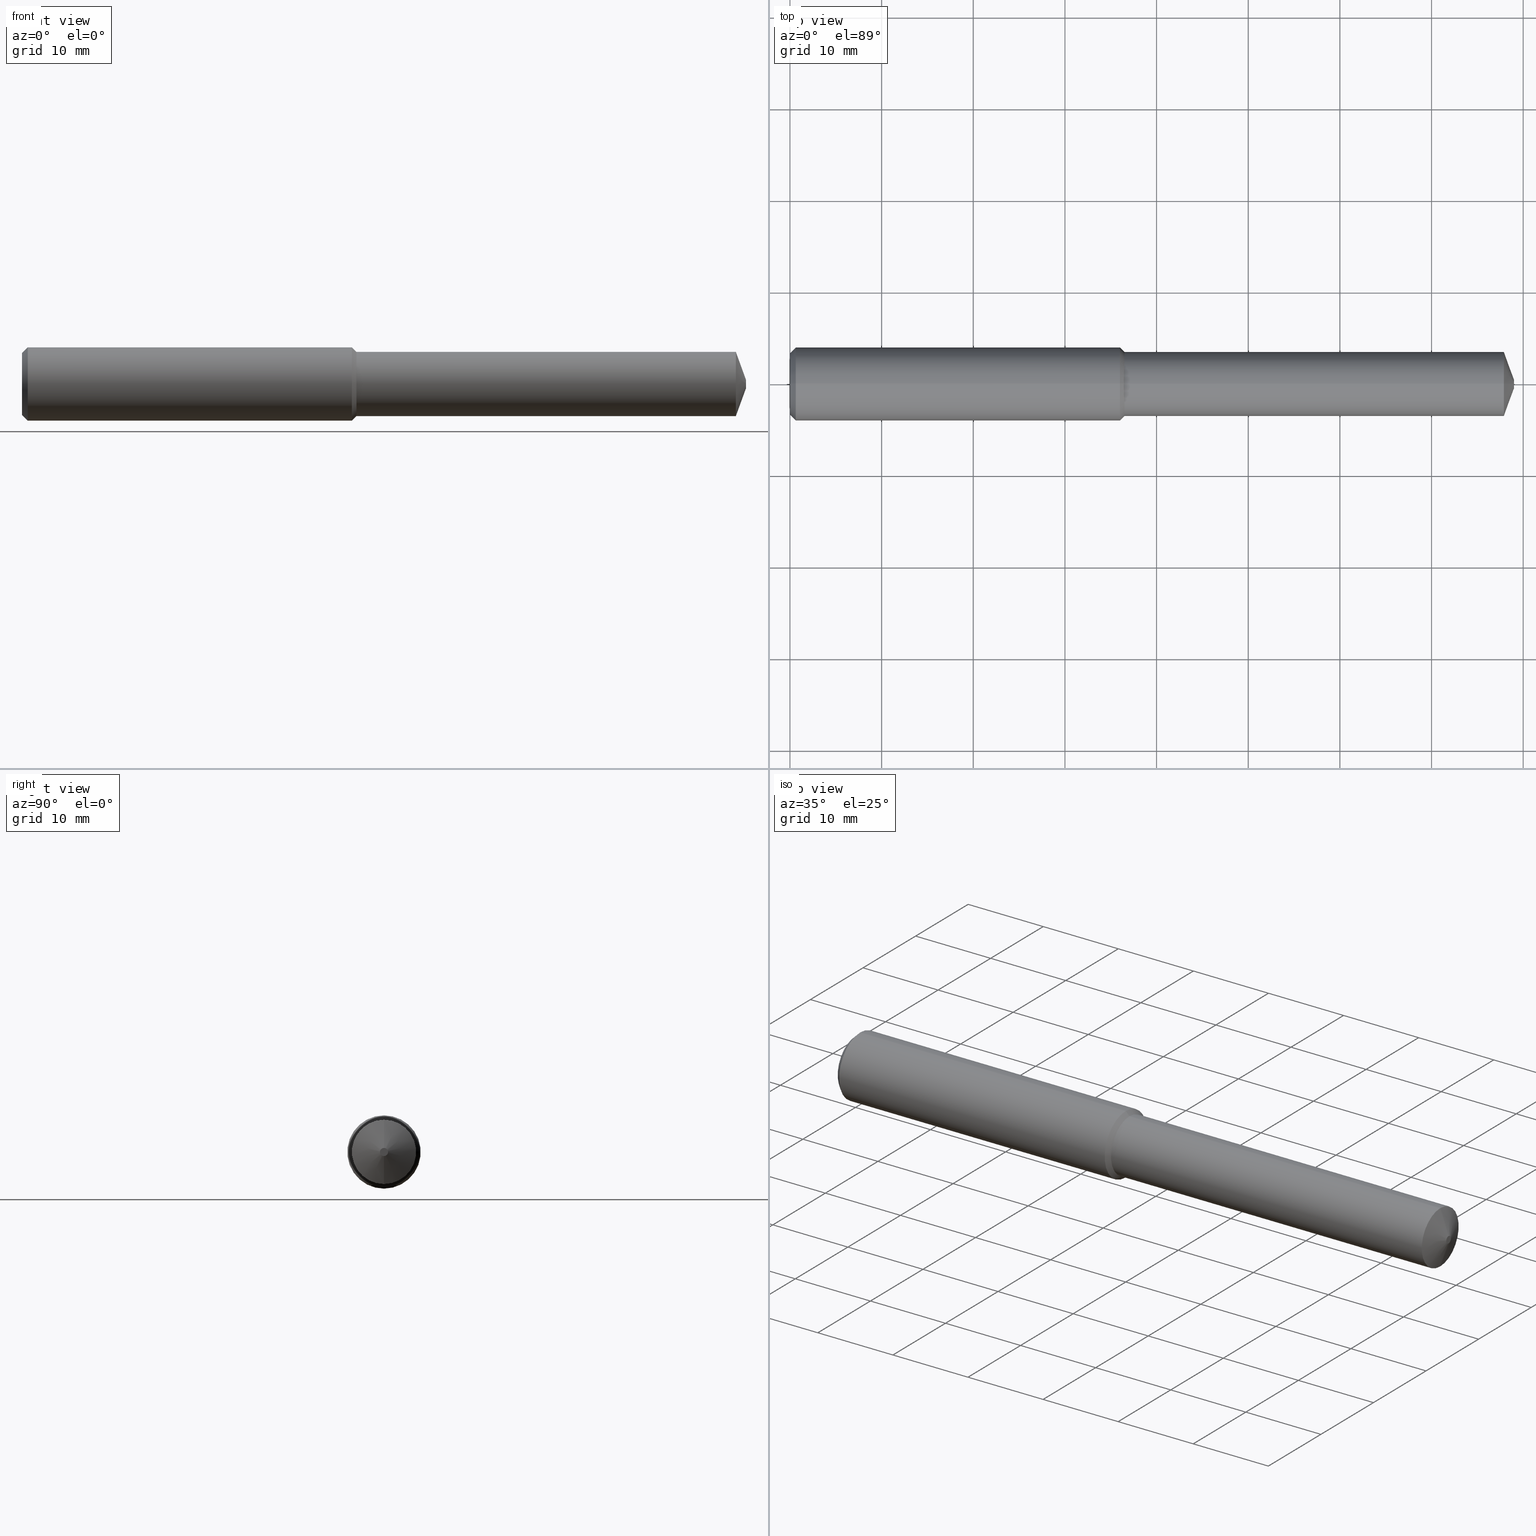
[diagram: canonical four-view strip — front | top / right | iso, engineering-drawing reading convention]
A machine part, canonical four-view strip (front | top / right | iso — engineering-drawing reading convention). The complete STEP part file that produces these views, byte-faithful:
ISO-10303-21;
HEADER;
FILE_DESCRIPTION (( 'STEP AP203' ),
    '1' );
FILE_NAME ('407012-DFX3-276A.STEP',
    '2024-10-02T22:04:26',
    ( '' ),
    ( '' ),
    'SwSTEP 2.0',
    'SolidWorks 2024',
    '' );
FILE_SCHEMA (( 'CONFIG_CONTROL_DESIGN' ));
ENDSEC;

DATA;
#1 = LINE ( 'NONE', #347, #46 ) ;
#2 = ADVANCED_FACE ( 'NONE', ( #69 ), #162, .T. ) ;
#3 = PERSON_AND_ORGANIZATION ( #165, #342 ) ;
#4 = ORIENTED_EDGE ( 'NONE', *, *, #209, .T. ) ;
#5 = AXIS2_PLACEMENT_3D ( 'NONE', #53, #306, #308 ) ;
#6 = CIRCLE ( 'NONE', #351, 0.1574803149606300579 ) ;
#7 = VECTOR ( 'NONE', #30, 39.37007874015748143 ) ;
#8 = EDGE_CURVE ( 'NONE', #303, #319, #145, .T. ) ;
#9 = CALENDAR_DATE ( 2024, 2, 10 ) ;
#10 = ORIENTED_EDGE ( 'NONE', *, *, #124, .T. ) ;
#11 = SECURITY_CLASSIFICATION_LEVEL ( 'unclassified' ) ;
#12 = ORIENTED_EDGE ( 'NONE', *, *, #83, .T. ) ;
#13 = DATE_AND_TIME ( #207, #352 ) ;
#14 = APPROVAL_PERSON_ORGANIZATION ( #300, #174, #143 ) ;
#15 = ORIENTED_EDGE ( 'NONE', *, *, #123, .T. ) ;
#16 = LINE ( 'NONE', #251, #134 ) ;
#17 = PRODUCT_RELATED_PRODUCT_CATEGORY ( 'detail', '', ( #364 ) ) ;
#18 = COORDINATED_UNIVERSAL_TIME_OFFSET ( 8, 0, .BEHIND. ) ;
#19 = CARTESIAN_POINT ( 'NONE',  ( -0.03808593750000075634, 0.000000000000000000, 0.000000000000000000 ) ) ;
#20 = UNCERTAINTY_MEASURE_WITH_UNIT (LENGTH_MEASURE( 1.000000000000000082E-05 ), #92, 'distance_accuracy_value', 'NONE');
#21 = CONICAL_SURFACE ( 'NONE', #102, 0.01750000000000038677, 1.221730476396031051 ) ;
#22 = DIRECTION ( 'NONE',  ( 1.000000000000000000, -0.000000000000000000, -0.000000000000000000 ) ) ;
#23 = DIRECTION ( 'NONE',  ( 0.000000000000000000, 0.000000000000000000, -1.000000000000000000 ) ) ;
#24 = DIRECTION ( 'NONE',  ( 1.000000000000000000, -0.000000000000000000, -0.000000000000000000 ) ) ;
#25 = FACE_OUTER_BOUND ( 'NONE', #154, .T. ) ;
#26 = VECTOR ( 'NONE', #201, 39.37007874015748143 ) ;
#27 = DIRECTION ( 'NONE',  ( 0.000000000000000000, 0.000000000000000000, -1.000000000000000000 ) ) ;
#28 = CARTESIAN_POINT ( 'NONE',  ( 0.02500000000000000139, 0.000000000000000000, -0.1574803149606299191 ) ) ;
#29 = VERTEX_POINT ( 'NONE', #343 ) ;
#30 = DIRECTION ( 'NONE',  ( -0.7071067811865505703, 8.659560562354895880E-17, -0.7071067811865444641 ) ) ;
#31 = CIRCLE ( 'NONE', #38, 0.1380000000000001781 ) ;
#32 = AXIS2_PLACEMENT_3D ( 'NONE', #329, #358, #210 ) ;
#33 = ADVANCED_FACE ( 'NONE', ( #222 ), #284, .T. ) ;
#34 = CARTESIAN_POINT ( 'NONE',  ( 1.417322834645669216, 0.000000000000000000, 0.000000000000000000 ) ) ;
#35 = DATE_AND_TIME ( #9, #163 ) ;
#36 = ORIENTED_EDGE ( 'NONE', *, *, #367, .F. ) ;
#37 = ORIENTED_EDGE ( 'NONE', *, *, #70, .T. ) ;
#38 = AXIS2_PLACEMENT_3D ( 'NONE', #80, #133, #192 ) ;
#39 = PERSON_AND_ORGANIZATION_ROLE ( 'design_supplier' ) ;
#40 = ORIENTED_EDGE ( 'NONE', *, *, #316, .F. ) ;
#41 = PERSON_AND_ORGANIZATION ( #165, #342 ) ;
#42 = ORIENTED_EDGE ( 'NONE', *, *, #58, .T. ) ;
#43 = LENGTH_MEASURE_WITH_UNIT ( LENGTH_MEASURE( 0.02539999999999999897 ), #115 );
#44 = ORIENTED_EDGE ( 'NONE', *, *, #223, .T. ) ;
#45 = CC_DESIGN_PERSON_AND_ORGANIZATION_ASSIGNMENT ( #64, #39, ( #289 ) ) ;
#46 = VECTOR ( 'NONE', #317, 39.37007874015748143 ) ;
#47 = CARTESIAN_POINT ( 'NONE',  ( 1.436803149606299179, 1.690012582823350463E-17, 0.1380000000000001781 ) ) ;
#48 = CARTESIAN_POINT ( 'NONE',  ( 0.000000000000000000, 0.000000000000000000, 0.000000000000000000 ) ) ;
#49 = DIRECTION ( 'NONE',  ( 1.000000000000000000, -0.000000000000000000, -0.000000000000000000 ) ) ;
#50 = EDGE_CURVE ( 'NONE', #360, #319, #72, .T. ) ;
#51 = CLOSED_SHELL ( 'NONE', ( #278, #59, #2, #33, #293, #368, #109, #76, #151, #110, #166, #224 ) ) ;
#52 = DIRECTION ( 'NONE',  ( -0.3420201433256684354, 1.150791560227850516E-16, -0.9396926207859085389 ) ) ;
#53 = CARTESIAN_POINT ( 'NONE',  ( 0.02500000000000000139, 0.000000000000000000, 0.000000000000000000 ) ) ;
#54 = CARTESIAN_POINT ( 'NONE',  ( 0.000000000000000000, 0.000000000000000000, -0.1324803149606299246 ) ) ;
#55 = DIRECTION ( 'NONE',  ( 1.000000000000000000, -0.000000000000000000, -0.000000000000000000 ) ) ;
#56 = DIRECTION ( 'NONE',  ( -1.000000000000000000, 0.000000000000000000, 0.000000000000000000 ) ) ;
#57 = CARTESIAN_POINT ( 'NONE',  ( 3.110236220472441193, 9.521628863370716354E-18, -0.01750000000000038677 ) ) ;
#58 = EDGE_CURVE ( 'NONE', #333, #359, #129, .T. ) ;
#59 = ADVANCED_FACE ( 'NONE', ( #225 ), #312, .T. ) ;
#60 = DIMENSIONAL_EXPONENTS ( 1.000000000000000000, 0.000000000000000000, 0.000000000000000000, 0.000000000000000000, 0.000000000000000000, 0.000000000000000000, 0.000000000000000000 ) ;
#61 = LINE ( 'NONE', #321, #26 ) ;
#62 = APPROVAL_STATUS ( 'not_yet_approved' ) ;
#63 = ORIENTED_EDGE ( 'NONE', *, *, #318, .T. ) ;
#64 = PERSON_AND_ORGANIZATION ( #165, #342 ) ;
#65 = ORIENTED_EDGE ( 'NONE', *, *, #150, .F. ) ;
#66 = APPROVAL_PERSON_ORGANIZATION ( #68, #363, #178 ) ;
#67 = ORIENTED_EDGE ( 'NONE', *, *, #194, .F. ) ;
#68 = PERSON_AND_ORGANIZATION ( #165, #342 ) ;
#69 = FACE_OUTER_BOUND ( 'NONE', #299, .T. ) ;
#70 = EDGE_CURVE ( 'NONE', #243, #122, #31, .T. ) ;
#71 = DIRECTION ( 'NONE',  ( 0.000000000000000000, 0.000000000000000000, 1.000000000000000000 ) ) ;
#72 = CIRCLE ( 'NONE', #315, 0.1380000000000003724 ) ;
#73 = CIRCLE ( 'NONE', #170, 0.1324803149606299246 ) ;
#74 = AXIS2_PLACEMENT_3D ( 'NONE', #374, #137, #106 ) ;
#75 = DIRECTION ( 'NONE',  ( 0.000000000000000000, 0.000000000000000000, 1.000000000000000000 ) ) ;
#76 = ADVANCED_FACE ( 'NONE', ( #258 ), #21, .T. ) ;
#77 = CARTESIAN_POINT ( 'NONE',  ( 3.066377807243363840, 0.000000000000000000, 0.000000000000000000 ) ) ;
#78 = FACE_OUTER_BOUND ( 'NONE', #139, .T. ) ;
#79 = DIRECTION ( 'NONE',  ( 0.000000000000000000, 0.000000000000000000, -1.000000000000000000 ) ) ;
#80 = CARTESIAN_POINT ( 'NONE',  ( 1.436803149606299179, 0.000000000000000000, 0.000000000000000000 ) ) ;
#81 = DIRECTION ( 'NONE',  ( 0.000000000000000000, 0.000000000000000000, -1.000000000000000000 ) ) ;
#82 = PLANE ( 'NONE',  #295 ) ;
#83 = EDGE_CURVE ( 'NONE', #331, #303, #253, .T. ) ;
#84 = DIRECTION ( 'NONE',  ( 1.000000000000000000, -0.000000000000000000, -0.000000000000000000 ) ) ;
#85 = CARTESIAN_POINT ( 'NONE',  ( 0.000000000000000000, 1.775496786559105798E-17, 0.1324803149606299246 ) ) ;
#86 = APPROVAL_ROLE ( '' ) ;
#87 = VECTOR ( 'NONE', #172, 39.37007874015748143 ) ;
#88 = CALENDAR_DATE ( 2024, 2, 10 ) ;
#89 = ORIENTED_EDGE ( 'NONE', *, *, #194, .T. ) ;
#90 = APPROVAL_DATE_TIME ( #13, #174 ) ;
#91 = ORIENTED_EDGE ( 'NONE', *, *, #356, .T. ) ;
#92 =( CONVERSION_BASED_UNIT ( 'INCH', #43 ) LENGTH_UNIT ( ) NAMED_UNIT ( #60 ) );
#93 = ORIENTED_EDGE ( 'NONE', *, *, #124, .F. ) ;
#94 = APPROVAL_PERSON_ORGANIZATION ( #125, #286, #86 ) ;
#95 = ORIENTED_EDGE ( 'NONE', *, *, #209, .F. ) ;
#96 = EDGE_CURVE ( 'NONE', #29, #250, #196, .T. ) ;
#97 = ORIENTED_EDGE ( 'NONE', *, *, #341, .F. ) ;
#98 = DIRECTION ( 'NONE',  ( 1.000000000000000000, -0.000000000000000000, -0.000000000000000000 ) ) ;
#99 = DIRECTION ( 'NONE',  ( 1.000000000000000000, -0.000000000000000000, -0.000000000000000000 ) ) ;
#100 = DIRECTION ( 'NONE',  ( 1.000000000000000000, -0.000000000000000000, -0.000000000000000000 ) ) ;
#101 = CARTESIAN_POINT ( 'NONE',  ( -0.03808593750000075634, 0.000000000000000000, 0.000000000000000000 ) ) ;
#102 = AXIS2_PLACEMENT_3D ( 'NONE', #371, #229, #75 ) ;
#103 = LOCAL_TIME ( 15, 4, 26.00000000000000000, #146 ) ;
#104 = DIRECTION ( 'NONE',  ( 1.000000000000000000, -0.000000000000000000, -0.000000000000000000 ) ) ;
#105 = CC_DESIGN_PERSON_AND_ORGANIZATION_ASSIGNMENT ( #214, #186, ( #144 ) ) ;
#106 = DIRECTION ( 'NONE',  ( 0.000000000000000000, 0.000000000000000000, -1.000000000000000000 ) ) ;
#107 = DIRECTION ( 'NONE',  ( 1.000000000000000000, -0.000000000000000000, -0.000000000000000000 ) ) ;
#108 = EDGE_LOOP ( 'NONE', ( #328, #188, #269, #241 ) ) ;
#109 = ADVANCED_FACE ( 'NONE', ( #338 ), #159, .T. ) ;
#110 = ADVANCED_FACE ( 'NONE', ( #335 ), #334, .T. ) ;
#111 = DIRECTION ( 'NONE',  ( 1.000000000000000000, -0.000000000000000000, -0.000000000000000000 ) ) ;
#112 = AXIS2_PLACEMENT_3D ( 'NONE', #187, #216, #71 ) ;
#113 = CARTESIAN_POINT ( 'NONE',  ( 3.066377807243363840, 1.690012582823352312E-17, -0.1380000000000004001 ) ) ;
#114 = LINE ( 'NONE', #238, #7 ) ;
#115 =( LENGTH_UNIT ( ) NAMED_UNIT ( * ) SI_UNIT ( $, .METRE. ) );
#116 = AXIS2_PLACEMENT_3D ( 'NONE', #130, #104, #218 ) ;
#117 = ORIENTED_EDGE ( 'NONE', *, *, #96, .F. ) ;
#118 = AXIS2_PLACEMENT_3D ( 'NONE', #101, #226, #340 ) ;
#119 =( NAMED_UNIT ( * ) PLANE_ANGLE_UNIT ( ) SI_UNIT ( $, .RADIAN. ) );
#120 = EDGE_LOOP ( 'NONE', ( #89, #147, #322, #297 ) ) ;
#121 = PERSON_AND_ORGANIZATION_ROLE ( 'classification_officer' ) ;
#122 = VERTEX_POINT ( 'NONE', #47 ) ;
#123 = EDGE_CURVE ( 'NONE', #29, #333, #259, .T. ) ;
#124 = EDGE_CURVE ( 'NONE', #247, #208, #219, .T. ) ;
#125 = PERSON_AND_ORGANIZATION ( #165, #342 ) ;
#126 = ORIENTED_EDGE ( 'NONE', *, *, #83, .F. ) ;
#127 = AXIS2_PLACEMENT_3D ( 'NONE', #260, #55, #290 ) ;
#128 = CALENDAR_DATE ( 2024, 2, 10 ) ;
#129 = LINE ( 'NONE', #309, #288 ) ;
#130 = CARTESIAN_POINT ( 'NONE',  ( 3.110236220472441193, 0.000000000000000000, 0.000000000000000000 ) ) ;
#131 = FACE_OUTER_BOUND ( 'NONE', #180, .T. ) ;
#132 = DIRECTION ( 'NONE',  ( -1.000000000000000000, 0.000000000000000000, 0.000000000000000000 ) ) ;
#133 = DIRECTION ( 'NONE',  ( 1.000000000000000000, -0.000000000000000000, -0.000000000000000000 ) ) ;
#134 = VECTOR ( 'NONE', #280, 39.37007874015748143 ) ;
#135 =( GEOMETRIC_REPRESENTATION_CONTEXT ( 3 ) GLOBAL_UNCERTAINTY_ASSIGNED_CONTEXT ( ( #20 ) ) GLOBAL_UNIT_ASSIGNED_CONTEXT ( ( #92, #119, #325 ) ) REPRESENTATION_CONTEXT ( 'NONE', 'WORKASPACE' ) );
#136 = CARTESIAN_POINT ( 'NONE',  ( 3.110236220472441193, 0.000000000000000000, 0.01750000000000038677 ) ) ;
#137 = DIRECTION ( 'NONE',  ( 1.000000000000000000, -0.000000000000000000, -0.000000000000000000 ) ) ;
#138 = EDGE_CURVE ( 'NONE', #331, #360, #16, .T. ) ;
#139 = EDGE_LOOP ( 'NONE', ( #271, #326, #355, #185 ) ) ;
#140 = LINE ( 'NONE', #344, #264 ) ;
#141 = AXIS2_PLACEMENT_3D ( 'NONE', #378, #320, #294 ) ;
#142 = DIRECTION ( 'NONE',  ( 0.000000000000000000, 0.000000000000000000, -1.000000000000000000 ) ) ;
#143 = APPROVAL_ROLE ( '' ) ;
#144 = PRODUCT_DEFINITION ( 'UNKNOWN', '', #289, #257 ) ;
#145 = LINE ( 'NONE', #167, #227 ) ;
#146 = COORDINATED_UNIVERSAL_TIME_OFFSET ( 8, 0, .BEHIND. ) ;
#147 = ORIENTED_EDGE ( 'NONE', *, *, #254, .T. ) ;
#148 = DATE_AND_TIME ( #128, #213 ) ;
#149 = ORIENTED_EDGE ( 'NONE', *, *, #150, .T. ) ;
#150 = EDGE_CURVE ( 'NONE', #250, #359, #6, .T. ) ;
#151 = ADVANCED_FACE ( 'NONE', ( #131 ), #255, .T. ) ;
#152 = COORDINATED_UNIVERSAL_TIME_OFFSET ( 8, 0, .BEHIND. ) ;
#153 = EDGE_LOOP ( 'NONE', ( #67, #93 ) ) ;
#154 = EDGE_LOOP ( 'NONE', ( #97, #212, #4, #211 ) ) ;
#155 = AXIS2_PLACEMENT_3D ( 'NONE', #19, #98, #252 ) ;
#156 = AXIS2_PLACEMENT_3D ( 'NONE', #34, #314, #27 ) ;
#157 = CARTESIAN_POINT ( 'NONE',  ( 3.110236220472441193, 0.000000000000000000, 0.000000000000000000 ) ) ;
#158 = CALENDAR_DATE ( 2024, 2, 10 ) ;
#159 = PLANE ( 'NONE',  #372 ) ;
#160 = CC_DESIGN_DATE_AND_TIME_ASSIGNMENT ( #148, #244, ( #377 ) ) ;
#161 = DIRECTION ( 'NONE',  ( 1.000000000000000000, -0.000000000000000000, -0.000000000000000000 ) ) ;
#162 = CONICAL_SURFACE ( 'NONE', #112, 0.1380000000000001781, 0.7853981633974439491 ) ;
#163 = LOCAL_TIME ( 15, 4, 26.00000000000000000, #152 ) ;
#164 = DIRECTION ( 'NONE',  ( -0.000000000000000000, 0.000000000000000000, -1.000000000000000000 ) ) ;
#165 = PERSON ( 'UNSPECIFIED', 'UNSPECIFIED', 'UNSPECIFIED', ('UNSPECIFIED'), ('UNSPECIFIED'), ('UNSPECIFIED') ) ;
#166 = ADVANCED_FACE ( 'NONE', ( #78 ), #193, .T. ) ;
#167 = CARTESIAN_POINT ( 'NONE',  ( 3.110236220472441193, 2.143131898507915367E-18, -0.01750000000000038677 ) ) ;
#168 = CARTESIAN_POINT ( 'NONE',  ( 0.02500000000000000139, 0.000000000000000000, 0.000000000000000000 ) ) ;
#169 = AXIS2_PLACEMENT_3D ( 'NONE', #362, #132, #191 ) ;
#170 = AXIS2_PLACEMENT_3D ( 'NONE', #348, #265, #81 ) ;
#171 = AXIS2_PLACEMENT_3D ( 'NONE', #175, #111, #261 ) ;
#172 = DIRECTION ( 'NONE',  ( 1.000000000000000000, -0.000000000000000000, -0.000000000000000000 ) ) ;
#173 = DIRECTION ( 'NONE',  ( 0.000000000000000000, 0.000000000000000000, -1.000000000000000000 ) ) ;
#174 = APPROVAL ( #62, 'UNSPECIFIED' ) ;
#175 = CARTESIAN_POINT ( 'NONE',  ( 0.02500000000000000139, 0.000000000000000000, 0.000000000000000000 ) ) ;
#176 = DIRECTION ( 'NONE',  ( 0.7071067811865474617, 0.000000000000000000, -0.7071067811865475727 ) ) ;
#177 = EDGE_LOOP ( 'NONE', ( #182, #126, #305, #354 ) ) ;
#178 = APPROVAL_ROLE ( '' ) ;
#179 = ORIENTED_EDGE ( 'NONE', *, *, #316, .T. ) ;
#180 = EDGE_LOOP ( 'NONE', ( #272, #332, #179, #292 ) ) ;
#181 = APPROVAL_DATE_TIME ( #246, #363 ) ;
#182 = ORIENTED_EDGE ( 'NONE', *, *, #8, .F. ) ;
#183 = CONICAL_SURFACE ( 'NONE', #195, 0.1574803149606299191, 0.7853981633974483900 ) ;
#184 = MECHANICAL_CONTEXT ( 'NONE', #370, 'mechanical' ) ;
#185 = ORIENTED_EDGE ( 'NONE', *, *, #304, .F. ) ;
#186 = PERSON_AND_ORGANIZATION_ROLE ( 'creator' ) ;
#187 = CARTESIAN_POINT ( 'NONE',  ( 1.436803149606299179, 0.000000000000000000, 0.000000000000000000 ) ) ;
#188 = ORIENTED_EDGE ( 'NONE', *, *, #263, .F. ) ;
#189 = AXIS2_PLACEMENT_3D ( 'NONE', #366, #100, #282 ) ;
#190 = CC_DESIGN_SECURITY_CLASSIFICATION ( #377, ( #289 ) ) ;
#191 = DIRECTION ( 'NONE',  ( 0.000000000000000000, 0.000000000000000000, 1.000000000000000000 ) ) ;
#192 = DIRECTION ( 'NONE',  ( 0.000000000000000000, 0.000000000000000000, -1.000000000000000000 ) ) ;
#193 = CYLINDRICAL_SURFACE ( 'NONE', #118, 0.1574803149606300023 ) ;
#194 = EDGE_CURVE ( 'NONE', #208, #247, #73, .T. ) ;
#195 = AXIS2_PLACEMENT_3D ( 'NONE', #168, #84, #266 ) ;
#196 = LINE ( 'NONE', #365, #275 ) ;
#197 = CARTESIAN_POINT ( 'NONE',  ( 3.066377807243363840, 0.000000000000000000, 0.1380000000000004001 ) ) ;
#198 = FACE_OUTER_BOUND ( 'NONE', #273, .T. ) ;
#199 = PRODUCT_DEFINITION_SHAPE ( 'NONE', 'NONE',  #144 ) ;
#200 = CARTESIAN_POINT ( 'NONE',  ( 3.061616997868361794E-19, 0.1324803149606299246, 0.000000000000000000 ) ) ;
#201 = DIRECTION ( 'NONE',  ( -0.7071067811865505703, 0.000000000000000000, 0.7071067811865444641 ) ) ;
#202 = DIRECTION ( 'NONE',  ( 1.000000000000000000, -0.000000000000000000, -0.000000000000000000 ) ) ;
#203 = EDGE_CURVE ( 'NONE', #122, #359, #61, .T. ) ;
#204 = CIRCLE ( 'NONE', #156, 0.1574803149606300579 ) ;
#205 = APPROVAL_STATUS ( 'not_yet_approved' ) ;
#206 = VECTOR ( 'NONE', #176, 39.37007874015748143 ) ;
#207 = CALENDAR_DATE ( 2024, 2, 10 ) ;
#208 = VERTEX_POINT ( 'NONE', #54 ) ;
#209 = EDGE_CURVE ( 'NONE', #319, #360, #220, .T. ) ;
#210 = DIRECTION ( 'NONE',  ( 1.000000000000000000, 0.000000000000000000, 0.000000000000000000 ) ) ;
#211 = ORIENTED_EDGE ( 'NONE', *, *, #138, .F. ) ;
#212 = ORIENTED_EDGE ( 'NONE', *, *, #8, .T. ) ;
#213 = LOCAL_TIME ( 15, 4, 26.00000000000000000, #274 ) ;
#214 = PERSON_AND_ORGANIZATION ( #165, #342 ) ;
#215 = ORIENTED_EDGE ( 'NONE', *, *, #70, .F. ) ;
#216 = DIRECTION ( 'NONE',  ( -1.000000000000000000, 0.000000000000000000, 0.000000000000000000 ) ) ;
#217 = SHAPE_DEFINITION_REPRESENTATION ( #199, #285 ) ;
#218 = DIRECTION ( 'NONE',  ( 0.000000000000000000, 0.000000000000000000, -1.000000000000000000 ) ) ;
#219 = CIRCLE ( 'NONE', #240, 0.1324803149606299246 ) ;
#220 = CIRCLE ( 'NONE', #301, 0.1380000000000003724 ) ;
#221 = CC_DESIGN_APPROVAL ( #286, ( #377 ) ) ;
#222 = FACE_OUTER_BOUND ( 'NONE', #302, .T. ) ;
#223 = EDGE_CURVE ( 'NONE', #208, #29, #313, .T. ) ;
#224 = ADVANCED_FACE ( 'NONE', ( #198 ), #183, .T. ) ;
#225 = FACE_OUTER_BOUND ( 'NONE', #245, .T. ) ;
#226 = DIRECTION ( 'NONE',  ( 1.000000000000000000, -0.000000000000000000, -0.000000000000000000 ) ) ;
#227 = VECTOR ( 'NONE', #52, 39.37007874015748143 ) ;
#228 = CIRCLE ( 'NONE', #281, 0.1380000000000001781 ) ;
#229 = DIRECTION ( 'NONE',  ( -1.000000000000000000, 0.000000000000000000, 0.000000000000000000 ) ) ;
#230 = CARTESIAN_POINT ( 'NONE',  ( 0.02500000000000000139, 1.928577636452525534E-17, 0.1574803149606299191 ) ) ;
#231 = CC_DESIGN_PERSON_AND_ORGANIZATION_ASSIGNMENT ( #3, #327, ( #289 ) ) ;
#232 = CARTESIAN_POINT ( 'NONE',  ( 3.066377807243363840, 0.000000000000000000, 0.000000000000000000 ) ) ;
#233 = EDGE_LOOP ( 'NONE', ( #12, #267 ) ) ;
#234 = CONICAL_SURFACE ( 'NONE', #171, 0.1574803149606299191, 0.7853981633974483900 ) ;
#235 = DIRECTION ( 'NONE',  ( 0.7071067811865474617, 8.659560562354934091E-17, 0.7071067811865475727 ) ) ;
#236 = CC_DESIGN_PERSON_AND_ORGANIZATION_ASSIGNMENT ( #41, #353, ( #364 ) ) ;
#237 = CARTESIAN_POINT ( 'NONE',  ( -0.03808593750000075634, 1.690012582823350771E-17, 0.1380000000000002891 ) ) ;
#238 = CARTESIAN_POINT ( 'NONE',  ( 1.436803149606299179, 1.690012582823349539E-17, -0.1380000000000001781 ) ) ;
#239 = AXIS2_PLACEMENT_3D ( 'NONE', #337, #49, #23 ) ;
#240 = AXIS2_PLACEMENT_3D ( 'NONE', #48, #99, #277 ) ;
#241 = ORIENTED_EDGE ( 'NONE', *, *, #304, .T. ) ;
#242 = DATE_TIME_ROLE ( 'creation_date' ) ;
#243 = VERTEX_POINT ( 'NONE', #287 ) ;
#244 = DATE_TIME_ROLE ( 'classification_date' ) ;
#245 = EDGE_LOOP ( 'NONE', ( #15, #42, #65, #117 ) ) ;
#246 = DATE_AND_TIME ( #88, #103 ) ;
#247 = VERTEX_POINT ( 'NONE', #85 ) ;
#248 = CIRCLE ( 'NONE', #127, 0.01750000000000038677 ) ;
#249 = APPROVAL_STATUS ( 'not_yet_approved' ) ;
#250 = VERTEX_POINT ( 'NONE', #296 ) ;
#251 = CARTESIAN_POINT ( 'NONE',  ( 3.110236220472441193, 0.000000000000000000, 0.01750000000000038677 ) ) ;
#252 = DIRECTION ( 'NONE',  ( 0.000000000000000000, 0.000000000000000000, -1.000000000000000000 ) ) ;
#253 = CIRCLE ( 'NONE', #116, 0.01750000000000038677 ) ;
#254 = EDGE_CURVE ( 'NONE', #247, #333, #140, .T. ) ;
#255 = CYLINDRICAL_SURFACE ( 'NONE', #189, 0.1380000000000002891 ) ;
#256 = DIRECTION ( 'NONE',  ( 1.000000000000000000, 0.000000000000000000, -0.000000000000000000 ) ) ;
#257 = DESIGN_CONTEXT ( 'detailed design', #339, 'design' ) ;
#258 = FACE_OUTER_BOUND ( 'NONE', #177, .T. ) ;
#259 = CIRCLE ( 'NONE', #5, 0.1574803149606299191 ) ;
#260 = CARTESIAN_POINT ( 'NONE',  ( 3.110236220472441193, 0.000000000000000000, 0.000000000000000000 ) ) ;
#261 = DIRECTION ( 'NONE',  ( 0.000000000000000000, 0.000000000000000000, -1.000000000000000000 ) ) ;
#262 = CARTESIAN_POINT ( 'NONE',  ( 1.436803149606299179, 0.000000000000000000, 0.000000000000000000 ) ) ;
#263 = EDGE_CURVE ( 'NONE', #122, #243, #228, .T. ) ;
#264 = VECTOR ( 'NONE', #235, 39.37007874015748143 ) ;
#265 = DIRECTION ( 'NONE',  ( 1.000000000000000000, -0.000000000000000000, -0.000000000000000000 ) ) ;
#266 = DIRECTION ( 'NONE',  ( 0.000000000000000000, 0.000000000000000000, -1.000000000000000000 ) ) ;
#267 = ORIENTED_EDGE ( 'NONE', *, *, #341, .T. ) ;
#268 = COORDINATED_UNIVERSAL_TIME_OFFSET ( 8, 0, .BEHIND. ) ;
#269 = ORIENTED_EDGE ( 'NONE', *, *, #203, .T. ) ;
#270 = APPLICATION_PROTOCOL_DEFINITION ( 'international standard', 'config_control_design', 1994, #339 ) ;
#271 = ORIENTED_EDGE ( 'NONE', *, *, #58, .F. ) ;
#272 = ORIENTED_EDGE ( 'NONE', *, *, #356, .F. ) ;
#273 = EDGE_LOOP ( 'NONE', ( #357, #10, #44, #36 ) ) ;
#274 = COORDINATED_UNIVERSAL_TIME_OFFSET ( 8, 0, .BEHIND. ) ;
#275 = VECTOR ( 'NONE', #161, 39.37007874015748143 ) ;
#276 = ORIENTED_EDGE ( 'NONE', *, *, #203, .F. ) ;
#277 = DIRECTION ( 'NONE',  ( 0.000000000000000000, 0.000000000000000000, -1.000000000000000000 ) ) ;
#278 = ADVANCED_FACE ( 'NONE', ( #376 ), #234, .T. ) ;
#279 = CARTESIAN_POINT ( 'NONE',  ( 1.417322834645669216, 0.000000000000000000, 0.000000000000000000 ) ) ;
#280 = DIRECTION ( 'NONE',  ( -0.3420201433256684354, 0.000000000000000000, 0.9396926207859085389 ) ) ;
#281 = AXIS2_PLACEMENT_3D ( 'NONE', #262, #107, #173 ) ;
#282 = DIRECTION ( 'NONE',  ( 0.000000000000000000, 0.000000000000000000, -1.000000000000000000 ) ) ;
#283 = MANIFOLD_SOLID_BREP ( 'Body', #51 ) ;
#284 = CYLINDRICAL_SURFACE ( 'NONE', #239, 0.1380000000000002891 ) ;
#285 = ADVANCED_BREP_SHAPE_REPRESENTATION ( '407012-DFX3-276A', ( #283, #32 ), #135 ) ;
#286 = APPROVAL ( #249, 'UNSPECIFIED' ) ;
#287 = CARTESIAN_POINT ( 'NONE',  ( 1.436803149606299179, 0.000000000000000000, -0.1380000000000001781 ) ) ;
#288 = VECTOR ( 'NONE', #310, 39.37007874015748143 ) ;
#289 = PRODUCT_DEFINITION_FORMATION_WITH_SPECIFIED_SOURCE ( 'ANY', '', #364, .NOT_KNOWN. ) ;
#290 = DIRECTION ( 'NONE',  ( 0.000000000000000000, 0.000000000000000000, -1.000000000000000000 ) ) ;
#291 = DIRECTION ( 'NONE',  ( 0.000000000000000000, 0.000000000000000000, 1.000000000000000000 ) ) ;
#292 = ORIENTED_EDGE ( 'NONE', *, *, #50, .F. ) ;
#293 = ADVANCED_FACE ( 'NONE', ( #25 ), #323, .T. ) ;
#294 = DIRECTION ( 'NONE',  ( 0.000000000000000000, 0.000000000000000000, 1.000000000000000000 ) ) ;
#295 = AXIS2_PLACEMENT_3D ( 'NONE', #200, #56, #291 ) ;
#296 = CARTESIAN_POINT ( 'NONE',  ( 1.417322834645669216, 1.928577636452526458E-17, -0.1574803149606300579 ) ) ;
#297 = ORIENTED_EDGE ( 'NONE', *, *, #223, .F. ) ;
#298 = APPLICATION_PROTOCOL_DEFINITION ( 'international standard', 'config_control_design', 1994, #370 ) ;
#299 = EDGE_LOOP ( 'NONE', ( #215, #63, #149, #276 ) ) ;
#300 = PERSON_AND_ORGANIZATION ( #165, #342 ) ;
#301 = AXIS2_PLACEMENT_3D ( 'NONE', #232, #202, #142 ) ;
#302 = EDGE_LOOP ( 'NONE', ( #37, #91, #95, #40 ) ) ;
#303 = VERTEX_POINT ( 'NONE', #57 ) ;
#304 = EDGE_CURVE ( 'NONE', #359, #250, #204, .T. ) ;
#305 = ORIENTED_EDGE ( 'NONE', *, *, #138, .T. ) ;
#306 = DIRECTION ( 'NONE',  ( 1.000000000000000000, -0.000000000000000000, -0.000000000000000000 ) ) ;
#307 = DATE_AND_TIME ( #158, #311 ) ;
#308 = DIRECTION ( 'NONE',  ( 0.000000000000000000, 0.000000000000000000, -1.000000000000000000 ) ) ;
#309 = CARTESIAN_POINT ( 'NONE',  ( -0.03808593750000075634, 1.928577636452525842E-17, 0.1574803149606300023 ) ) ;
#310 = DIRECTION ( 'NONE',  ( 1.000000000000000000, -0.000000000000000000, -0.000000000000000000 ) ) ;
#311 = LOCAL_TIME ( 15, 4, 26.00000000000000000, #18 ) ;
#312 = CYLINDRICAL_SURFACE ( 'NONE', #155, 0.1574803149606300023 ) ;
#313 = LINE ( 'NONE', #28, #206 ) ;
#314 = DIRECTION ( 'NONE',  ( 1.000000000000000000, -0.000000000000000000, -0.000000000000000000 ) ) ;
#315 = AXIS2_PLACEMENT_3D ( 'NONE', #77, #24, #369 ) ;
#316 = EDGE_CURVE ( 'NONE', #243, #319, #1, .T. ) ;
#317 = DIRECTION ( 'NONE',  ( 1.000000000000000000, -0.000000000000000000, -0.000000000000000000 ) ) ;
#318 = EDGE_CURVE ( 'NONE', #243, #250, #114, .T. ) ;
#319 = VERTEX_POINT ( 'NONE', #113 ) ;
#320 = DIRECTION ( 'NONE',  ( -1.000000000000000000, 0.000000000000000000, 0.000000000000000000 ) ) ;
#321 = CARTESIAN_POINT ( 'NONE',  ( 1.436803149606299179, 0.000000000000000000, 0.1380000000000001781 ) ) ;
#322 = ORIENTED_EDGE ( 'NONE', *, *, #123, .F. ) ;
#323 = CONICAL_SURFACE ( 'NONE', #141, 0.01750000000000038677, 1.221730476396031051 ) ;
#324 = PERSON_AND_ORGANIZATION ( #165, #342 ) ;
#325 =( NAMED_UNIT ( * ) SI_UNIT ( $, .STERADIAN. ) SOLID_ANGLE_UNIT ( ) );
#326 = ORIENTED_EDGE ( 'NONE', *, *, #367, .T. ) ;
#327 = PERSON_AND_ORGANIZATION_ROLE ( 'creator' ) ;
#328 = ORIENTED_EDGE ( 'NONE', *, *, #318, .F. ) ;
#329 = CARTESIAN_POINT ( 'NONE',  ( 0.000000000000000000, 0.000000000000000000, 0.000000000000000000 ) ) ;
#330 = CC_DESIGN_APPROVAL ( #363, ( #144 ) ) ;
#331 = VERTEX_POINT ( 'NONE', #136 ) ;
#332 = ORIENTED_EDGE ( 'NONE', *, *, #263, .T. ) ;
#333 = VERTEX_POINT ( 'NONE', #230 ) ;
#334 = CONICAL_SURFACE ( 'NONE', #169, 0.1380000000000001781, 0.7853981633974439491 ) ;
#335 = FACE_OUTER_BOUND ( 'NONE', #108, .T. ) ;
#336 = CC_DESIGN_DATE_AND_TIME_ASSIGNMENT ( #35, #242, ( #144 ) ) ;
#337 = CARTESIAN_POINT ( 'NONE',  ( -0.03808593750000075634, 0.000000000000000000, 0.000000000000000000 ) ) ;
#338 = FACE_OUTER_BOUND ( 'NONE', #233, .T. ) ;
#339 = APPLICATION_CONTEXT ( 'configuration controlled 3d designs of mechanical parts and assemblies' ) ;
#340 = DIRECTION ( 'NONE',  ( 0.000000000000000000, 0.000000000000000000, -1.000000000000000000 ) ) ;
#341 = EDGE_CURVE ( 'NONE', #303, #331, #248, .T. ) ;
#342 = ORGANIZATION ( 'UNSPECIFIED', 'UNSPECIFIED', '' ) ;
#343 = CARTESIAN_POINT ( 'NONE',  ( 0.02500000000000000139, 0.000000000000000000, -0.1574803149606299191 ) ) ;
#344 = CARTESIAN_POINT ( 'NONE',  ( 0.02500000000000000139, 1.928577636452524610E-17, 0.1574803149606299191 ) ) ;
#345 = CARTESIAN_POINT ( 'NONE',  ( 1.417322834645669216, 0.000000000000000000, 0.1574803149606300579 ) ) ;
#346 = CIRCLE ( 'NONE', #74, 0.1574803149606299191 ) ;
#347 = CARTESIAN_POINT ( 'NONE',  ( -0.03808593750000075634, 0.000000000000000000, -0.1380000000000002891 ) ) ;
#348 = CARTESIAN_POINT ( 'NONE',  ( 0.000000000000000000, 0.000000000000000000, 0.000000000000000000 ) ) ;
#349 = LINE ( 'NONE', #237, #87 ) ;
#350 = CC_DESIGN_PERSON_AND_ORGANIZATION_ASSIGNMENT ( #324, #121, ( #377 ) ) ;
#351 = AXIS2_PLACEMENT_3D ( 'NONE', #279, #22, #79 ) ;
#352 = LOCAL_TIME ( 15, 4, 26.00000000000000000, #268 ) ;
#353 = PERSON_AND_ORGANIZATION_ROLE ( 'design_owner' ) ;
#354 = ORIENTED_EDGE ( 'NONE', *, *, #50, .T. ) ;
#355 = ORIENTED_EDGE ( 'NONE', *, *, #96, .T. ) ;
#356 = EDGE_CURVE ( 'NONE', #122, #360, #349, .T. ) ;
#357 = ORIENTED_EDGE ( 'NONE', *, *, #254, .F. ) ;
#358 = DIRECTION ( 'NONE',  ( 0.000000000000000000, 0.000000000000000000, 1.000000000000000000 ) ) ;
#359 = VERTEX_POINT ( 'NONE', #345 ) ;
#360 = VERTEX_POINT ( 'NONE', #197 ) ;
#361 = APPROVAL_DATE_TIME ( #307, #286 ) ;
#362 = CARTESIAN_POINT ( 'NONE',  ( 1.436803149606299179, 0.000000000000000000, 0.000000000000000000 ) ) ;
#363 = APPROVAL ( #205, 'UNSPECIFIED' ) ;
#364 = PRODUCT ( '407012-DFX3-276A', '407012-DFX3-276A', '', ( #184 ) ) ;
#365 = CARTESIAN_POINT ( 'NONE',  ( -0.03808593750000075634, 0.000000000000000000, -0.1574803149606300023 ) ) ;
#366 = CARTESIAN_POINT ( 'NONE',  ( -0.03808593750000075634, 0.000000000000000000, 0.000000000000000000 ) ) ;
#367 = EDGE_CURVE ( 'NONE', #333, #29, #346, .T. ) ;
#368 = ADVANCED_FACE ( 'NONE', ( #375 ), #82, .T. ) ;
#369 = DIRECTION ( 'NONE',  ( 0.000000000000000000, 0.000000000000000000, -1.000000000000000000 ) ) ;
#370 = APPLICATION_CONTEXT ( 'configuration controlled 3d designs of mechanical parts and assemblies' ) ;
#371 = CARTESIAN_POINT ( 'NONE',  ( 3.110236220472441193, 0.000000000000000000, 0.000000000000000000 ) ) ;
#372 = AXIS2_PLACEMENT_3D ( 'NONE', #157, #256, #164 ) ;
#373 = CC_DESIGN_APPROVAL ( #174, ( #289 ) ) ;
#374 = CARTESIAN_POINT ( 'NONE',  ( 0.02500000000000000139, 0.000000000000000000, 0.000000000000000000 ) ) ;
#375 = FACE_OUTER_BOUND ( 'NONE', #153, .T. ) ;
#376 = FACE_OUTER_BOUND ( 'NONE', #120, .T. ) ;
#377 = SECURITY_CLASSIFICATION ( '', '', #11 ) ;
#378 = CARTESIAN_POINT ( 'NONE',  ( 3.110236220472441193, 0.000000000000000000, 0.000000000000000000 ) ) ;
ENDSEC;
END-ISO-10303-21;
